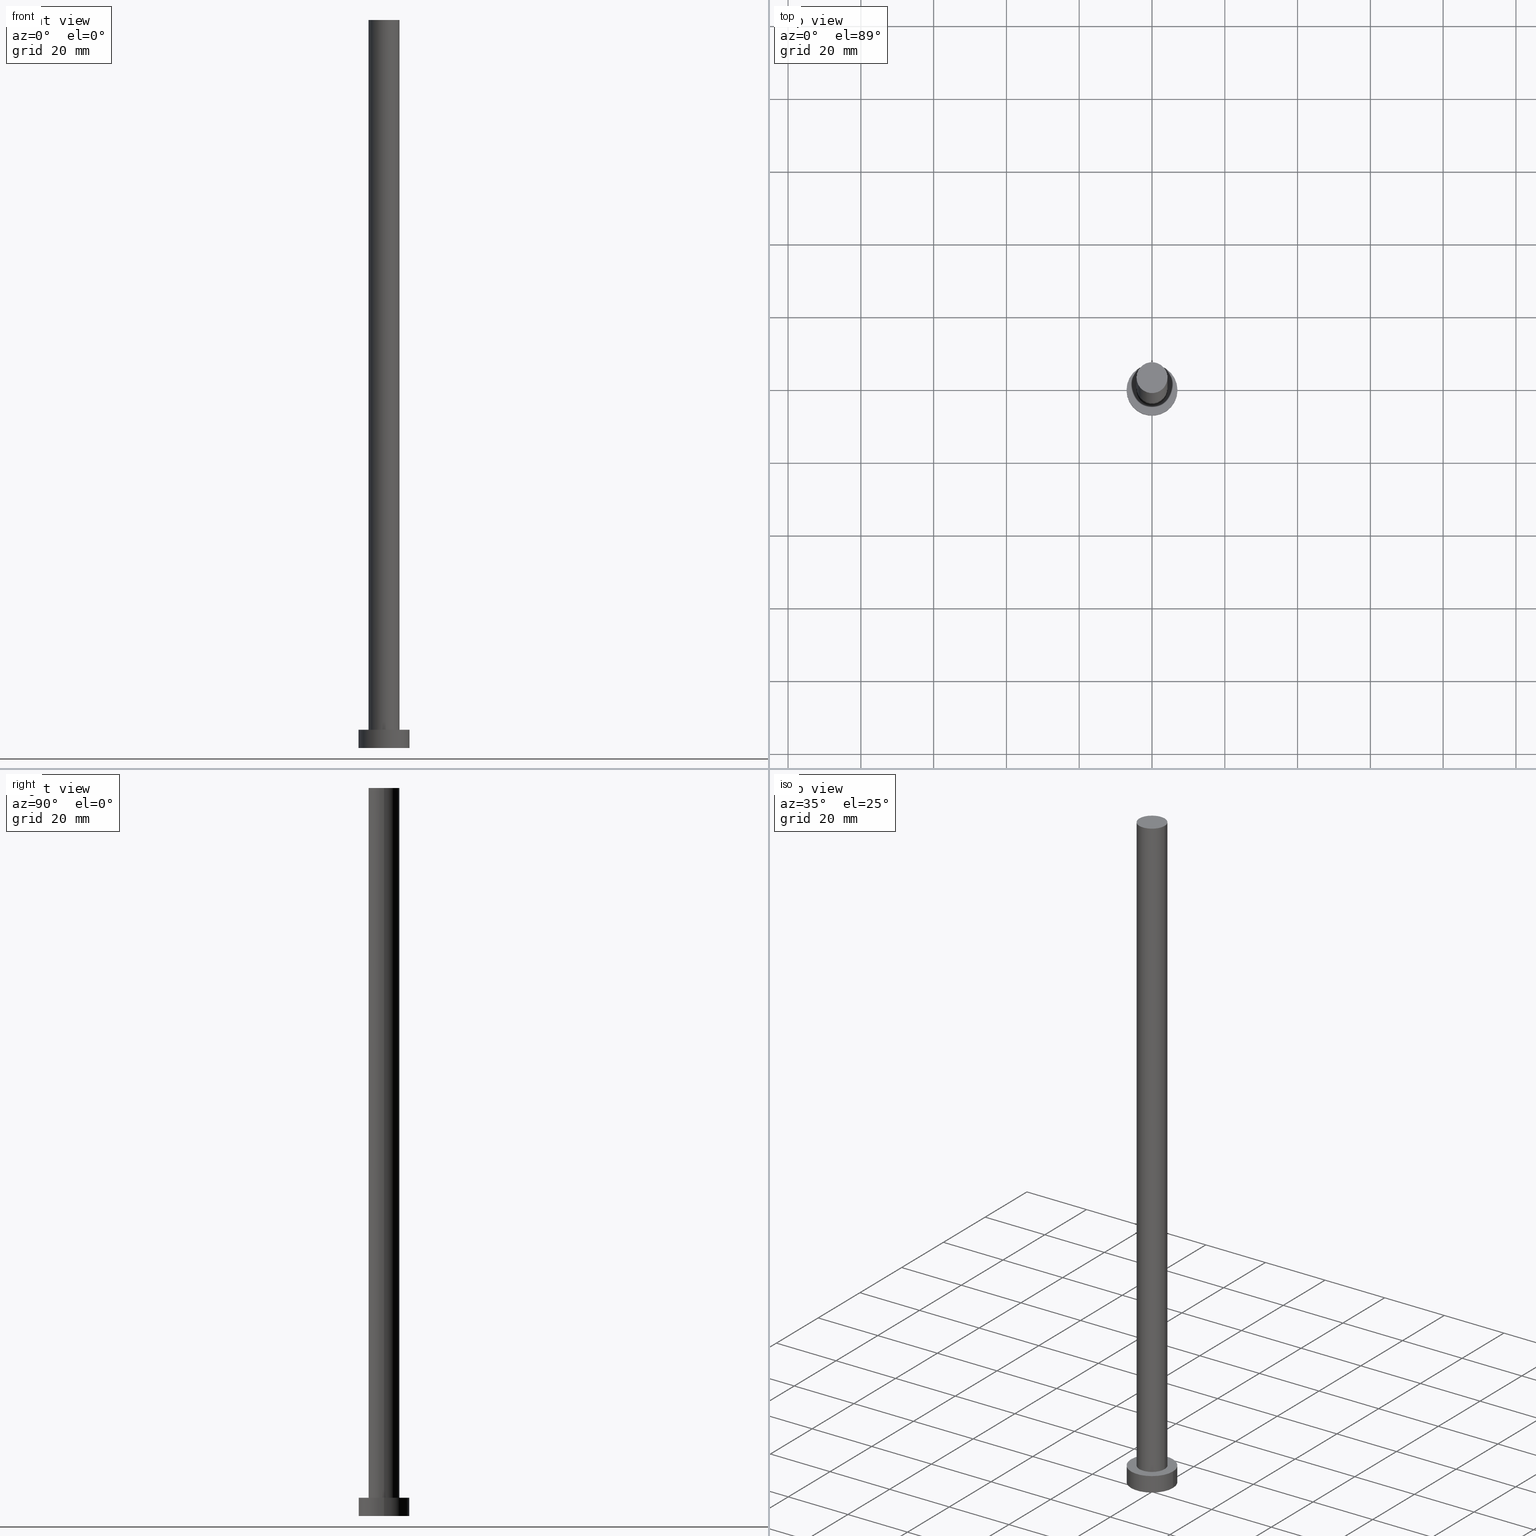
[diagram: canonical four-view strip — front | top / right | iso, engineering-drawing reading convention]
A machine part, canonical four-view strip (front | top / right | iso — engineering-drawing reading convention). The complete STEP part file that produces these views, byte-faithful:
ISO-10303-21;
HEADER;
FILE_DESCRIPTION (( 'STEP AP203' ),
    '1' );
FILE_NAME ('07c0.STEP',
    '2026-02-06T12:39:04',
    ( '' ),
    ( '' ),
    'SwSTEP 2.0',
    'SolidWorks 2019',
    '' );
FILE_SCHEMA (( 'CONFIG_CONTROL_DESIGN' ));
ENDSEC;

DATA;
#1 = EDGE_CURVE ( 'NONE', #57, #161, #108, .T. ) ;
#2 = EDGE_LOOP ( 'NONE', ( #194, #192, #41, #183 ) ) ;
#3 = AXIS2_PLACEMENT_3D ( 'NONE', #180, #7, #12 ) ;
#4 = AXIS2_PLACEMENT_3D ( 'NONE', #171, #148, #242 ) ;
#5 = AXIS2_PLACEMENT_3D ( 'NONE', #223, #115, #142 ) ;
#6 = CC_DESIGN_SECURITY_CLASSIFICATION ( #83, ( #147 ) ) ;
#7 = DIRECTION ( 'NONE',  ( 0.000000000000000000, 0.000000000000000000, 1.000000000000000000 ) ) ;
#8 = COORDINATED_UNIVERSAL_TIME_OFFSET ( 1, 0, .AHEAD. ) ;
#9 = ADVANCED_FACE ( 'NONE', ( #25, #244 ), #173, .T. ) ;
#10 = LINE ( 'NONE', #124, #23 ) ;
#11 = CARTESIAN_POINT ( 'NONE',  ( 0.000000000000000000, 0.000000000000000000, 200.0000000000000000 ) ) ;
#12 = DIRECTION ( 'NONE',  ( 1.000000000000000000, 0.000000000000000000, 0.000000000000000000 ) ) ;
#13 = COORDINATED_UNIVERSAL_TIME_OFFSET ( 1, 0, .AHEAD. ) ;
#14 = VERTEX_POINT ( 'NONE', #24 ) ;
#15 = APPROVAL_STATUS ( 'not_yet_approved' ) ;
#16 = VECTOR ( 'NONE', #64, 1000.000000000000000 ) ;
#17 = LINE ( 'NONE', #209, #16 ) ;
#18 = VERTEX_POINT ( 'NONE', #226 ) ;
#19 = AXIS2_PLACEMENT_3D ( 'NONE', #96, #175, #99 ) ;
#20 = EDGE_CURVE ( 'NONE', #104, #215, #22, .T. ) ;
#21 = EDGE_LOOP ( 'NONE', ( #56, #132 ) ) ;
#22 = CIRCLE ( 'NONE', #140, 7.000000000000000000 ) ;
#23 = VECTOR ( 'NONE', #250, 1000.000000000000000 ) ;
#24 = CARTESIAN_POINT ( 'NONE',  ( 4.250000000000000000, 5.204748896376250699E-16, 200.0000000000000000 ) ) ;
#25 = FACE_BOUND ( 'NONE', #21, .T. ) ;
#26 = DIRECTION ( 'NONE',  ( 1.000000000000000000, 0.000000000000000000, 0.000000000000000000 ) ) ;
#27 = CC_DESIGN_APPROVAL ( #168, ( #218 ) ) ;
#28 = FACE_OUTER_BOUND ( 'NONE', #2, .T. ) ;
#29 = PERSON_AND_ORGANIZATION ( #195, #158 ) ;
#30 = CARTESIAN_POINT ( 'NONE',  ( -7.000000000000000000, 0.000000000000000000, 5.000000000000000000 ) ) ;
#31 = EDGE_CURVE ( 'NONE', #239, #45, #62, .T. ) ;
#32 = SECURITY_CLASSIFICATION_LEVEL ( 'unclassified' ) ;
#33 = DIRECTION ( 'NONE',  ( -1.000000000000000000, 0.000000000000000000, 0.000000000000000000 ) ) ;
#34 = APPROVAL_ROLE ( '' ) ;
#35 = VECTOR ( 'NONE', #143, 1000.000000000000000 ) ;
#36 = CALENDAR_DATE ( 2026, 6, 2 ) ;
#37 = DIRECTION ( 'NONE',  ( 1.000000000000000000, 0.000000000000000000, -0.000000000000000000 ) ) ;
#38 = AXIS2_PLACEMENT_3D ( 'NONE', #197, #78, #227 ) ;
#39 = COORDINATED_UNIVERSAL_TIME_OFFSET ( 1, 0, .AHEAD. ) ;
#40 = ORIENTED_EDGE ( 'NONE', *, *, #20, .F. ) ;
#41 = ORIENTED_EDGE ( 'NONE', *, *, #46, .T. ) ;
#42 = CALENDAR_DATE ( 2026, 6, 2 ) ;
#43 = ORIENTED_EDGE ( 'NONE', *, *, #187, .T. ) ;
#44 = EDGE_CURVE ( 'NONE', #161, #57, #73, .T. ) ;
#45 = VERTEX_POINT ( 'NONE', #30 ) ;
#46 = EDGE_CURVE ( 'NONE', #18, #57, #98, .T. ) ;
#47 = APPROVAL_PERSON_ORGANIZATION ( #157, #89, #34 ) ;
#48 = APPROVAL ( #97, 'NEUR�EN�' ) ;
#49 = DIRECTION ( 'NONE',  ( 0.000000000000000000, 0.000000000000000000, 1.000000000000000000 ) ) ;
#50 = PERSON_AND_ORGANIZATION_ROLE ( 'classification_officer' ) ;
#51 = DIRECTION ( 'NONE',  ( 0.000000000000000000, 0.000000000000000000, 1.000000000000000000 ) ) ;
#52 = ADVANCED_BREP_SHAPE_REPRESENTATION ( '07c0', ( #117, #5 ), #91 ) ;
#53 = CARTESIAN_POINT ( 'NONE',  ( 0.000000000000000000, 0.000000000000000000, 0.000000000000000000 ) ) ;
#54 = PRODUCT_DEFINITION_SHAPE ( 'NONE', 'NONE',  #218 ) ;
#55 = DIRECTION ( 'NONE',  ( -1.000000000000000000, 0.000000000000000000, 0.000000000000000000 ) ) ;
#56 = ORIENTED_EDGE ( 'NONE', *, *, #1, .F. ) ;
#57 = VERTEX_POINT ( 'NONE', #66 ) ;
#58 = APPROVAL_ROLE ( '' ) ;
#59 = CC_DESIGN_PERSON_AND_ORGANIZATION_ASSIGNMENT ( #166, #145, ( #131 ) ) ;
#60 = ORIENTED_EDGE ( 'NONE', *, *, #46, .F. ) ;
#61 = AXIS2_PLACEMENT_3D ( 'NONE', #160, #138, #55 ) ;
#62 = CIRCLE ( 'NONE', #225, 7.000000000000000000 ) ;
#63 = CARTESIAN_POINT ( 'NONE',  ( 4.250000000000000000, 5.204748896376250699E-16, 200.0000000000000000 ) ) ;
#64 = DIRECTION ( 'NONE',  ( -0.000000000000000000, -0.000000000000000000, -1.000000000000000000 ) ) ;
#65 =( LENGTH_UNIT ( ) NAMED_UNIT ( * ) SI_UNIT ( .MILLI., .METRE. ) );
#66 = CARTESIAN_POINT ( 'NONE',  ( -4.250000000000000000, 0.000000000000000000, 5.000000000000000000 ) ) ;
#67 = ORIENTED_EDGE ( 'NONE', *, *, #210, .F. ) ;
#68 = EDGE_LOOP ( 'NONE', ( #211, #146, #251, #60 ) ) ;
#69 = APPLICATION_PROTOCOL_DEFINITION ( 'international standard', 'config_control_design', 1994, #186 ) ;
#70 = CARTESIAN_POINT ( 'NONE',  ( 0.000000000000000000, 0.000000000000000000, 5.000000000000000000 ) ) ;
#71 = CIRCLE ( 'NONE', #144, 7.000000000000000000 ) ;
#72 = ORIENTED_EDGE ( 'NONE', *, *, #241, .T. ) ;
#73 = CIRCLE ( 'NONE', #193, 4.250000000000000000 ) ;
#74 = CARTESIAN_POINT ( 'NONE',  ( 0.000000000000000000, 0.000000000000000000, 5.000000000000000000 ) ) ;
#75 = UNCERTAINTY_MEASURE_WITH_UNIT (LENGTH_MEASURE( 1.000000000000000082E-05 ), #65, 'distance_accuracy_value', 'NONE');
#76 = AXIS2_PLACEMENT_3D ( 'NONE', #70, #238, #33 ) ;
#77 = AXIS2_PLACEMENT_3D ( 'NONE', #11, #159, #248 ) ;
#78 = DIRECTION ( 'NONE',  ( -0.000000000000000000, -0.000000000000000000, -1.000000000000000000 ) ) ;
#79 = SHAPE_DEFINITION_REPRESENTATION ( #54, #52 ) ;
#80 = CARTESIAN_POINT ( 'NONE',  ( 0.000000000000000000, 0.000000000000000000, 5.000000000000000000 ) ) ;
#81 = LINE ( 'NONE', #63, #134 ) ;
#82 = ADVANCED_FACE ( 'NONE', ( #253 ), #255, .F. ) ;
#83 = SECURITY_CLASSIFICATION ( '', '', #32 ) ;
#84 = EDGE_LOOP ( 'NONE', ( #254, #90 ) ) ;
#85 = DATE_AND_TIME ( #122, #220 ) ;
#86 = AXIS2_PLACEMENT_3D ( 'NONE', #53, #49, #120 ) ;
#87 = APPLICATION_PROTOCOL_DEFINITION ( 'international standard', 'config_control_design', 1994, #150 ) ;
#88 = FACE_OUTER_BOUND ( 'NONE', #217, .T. ) ;
#89 = APPROVAL ( #15, 'NEUR�EN�' ) ;
#90 = ORIENTED_EDGE ( 'NONE', *, *, #31, .T. ) ;
#91 =( GEOMETRIC_REPRESENTATION_CONTEXT ( 3 ) GLOBAL_UNCERTAINTY_ASSIGNED_CONTEXT ( ( #75 ) ) GLOBAL_UNIT_ASSIGNED_CONTEXT ( ( #65, #95, #204 ) ) REPRESENTATION_CONTEXT ( 'NONE', 'WORKASPACE' ) );
#92 = ADVANCED_FACE ( 'NONE', ( #184 ), #164, .T. ) ;
#93 = EDGE_CURVE ( 'NONE', #45, #104, #17, .T. ) ;
#94 = CARTESIAN_POINT ( 'NONE',  ( 0.000000000000000000, 0.000000000000000000, 5.000000000000000000 ) ) ;
#95 =( NAMED_UNIT ( * ) PLANE_ANGLE_UNIT ( ) SI_UNIT ( $, .RADIAN. ) );
#96 = CARTESIAN_POINT ( 'NONE',  ( 0.000000000000000000, 0.000000000000000000, 200.0000000000000000 ) ) ;
#97 = APPROVAL_STATUS ( 'not_yet_approved' ) ;
#98 = LINE ( 'NONE', #106, #35 ) ;
#99 = DIRECTION ( 'NONE',  ( 1.000000000000000000, 0.000000000000000000, 0.000000000000000000 ) ) ;
#100 = PERSON_AND_ORGANIZATION ( #195, #158 ) ;
#101 = FACE_OUTER_BOUND ( 'NONE', #141, .T. ) ;
#102 = DIRECTION ( 'NONE',  ( 0.000000000000000000, 0.000000000000000000, 1.000000000000000000 ) ) ;
#103 = CC_DESIGN_PERSON_AND_ORGANIZATION_ASSIGNMENT ( #29, #207, ( #147 ) ) ;
#104 = VERTEX_POINT ( 'NONE', #185 ) ;
#105 = COORDINATED_UNIVERSAL_TIME_OFFSET ( 1, 0, .AHEAD. ) ;
#106 = CARTESIAN_POINT ( 'NONE',  ( -4.250000000000000000, 0.000000000000000000, 200.0000000000000000 ) ) ;
#107 = CC_DESIGN_PERSON_AND_ORGANIZATION_ASSIGNMENT ( #139, #200, ( #147 ) ) ;
#108 = CIRCLE ( 'NONE', #4, 4.250000000000000000 ) ;
#109 = EDGE_LOOP ( 'NONE', ( #234, #67, #128, #188 ) ) ;
#110 = ADVANCED_FACE ( 'NONE', ( #88 ), #165, .T. ) ;
#111 = DATE_AND_TIME ( #42, #191 ) ;
#112 = CC_DESIGN_APPROVAL ( #89, ( #147 ) ) ;
#113 = ADVANCED_FACE ( 'NONE', ( #101 ), #179, .T. ) ;
#114 = DESIGN_CONTEXT ( 'detailed design', #186, 'design' ) ;
#115 = DIRECTION ( 'NONE',  ( 0.000000000000000000, 0.000000000000000000, 1.000000000000000000 ) ) ;
#116 = PERSON_AND_ORGANIZATION ( #195, #158 ) ;
#117 = MANIFOLD_SOLID_BREP ( 'P�idat vysunut�m3', #230 ) ;
#118 = CYLINDRICAL_SURFACE ( 'NONE', #61, 7.000000000000000000 ) ;
#119 = PERSON_AND_ORGANIZATION ( #195, #158 ) ;
#120 = DIRECTION ( 'NONE',  ( 1.000000000000000000, 0.000000000000000000, 0.000000000000000000 ) ) ;
#121 = CC_DESIGN_PERSON_AND_ORGANIZATION_ASSIGNMENT ( #119, #249, ( #218 ) ) ;
#122 = CALENDAR_DATE ( 2026, 6, 2 ) ;
#123 = APPROVAL_PERSON_ORGANIZATION ( #116, #48, #176 ) ;
#124 = CARTESIAN_POINT ( 'NONE',  ( 7.000000000000000000, 8.572527594031473190E-16, 5.000000000000000000 ) ) ;
#125 = DATE_TIME_ROLE ( 'creation_date' ) ;
#126 = DIRECTION ( 'NONE',  ( 0.000000000000000000, 0.000000000000000000, 1.000000000000000000 ) ) ;
#127 = DIRECTION ( 'NONE',  ( -1.000000000000000000, 0.000000000000000000, 0.000000000000000000 ) ) ;
#128 = ORIENTED_EDGE ( 'NONE', *, *, #93, .T. ) ;
#129 = AXIS2_PLACEMENT_3D ( 'NONE', #74, #151, #155 ) ;
#130 = EDGE_CURVE ( 'NONE', #239, #215, #10, .T. ) ;
#131 = PRODUCT ( '07c0', '07c0', '', ( #190 ) ) ;
#132 = ORIENTED_EDGE ( 'NONE', *, *, #44, .F. ) ;
#133 = ORIENTED_EDGE ( 'NONE', *, *, #31, .F. ) ;
#134 = VECTOR ( 'NONE', #246, 1000.000000000000000 ) ;
#135 = DIRECTION ( 'NONE',  ( 0.000000000000000000, 0.000000000000000000, 1.000000000000000000 ) ) ;
#136 = APPROVAL_PERSON_ORGANIZATION ( #212, #168, #58 ) ;
#137 = EDGE_CURVE ( 'NONE', #14, #161, #81, .T. ) ;
#138 = DIRECTION ( 'NONE',  ( -0.000000000000000000, -0.000000000000000000, -1.000000000000000000 ) ) ;
#139 = PERSON_AND_ORGANIZATION ( #195, #158 ) ;
#140 = AXIS2_PLACEMENT_3D ( 'NONE', #221, #135, #245 ) ;
#141 = EDGE_LOOP ( 'NONE', ( #72, #43 ) ) ;
#142 = DIRECTION ( 'NONE',  ( 1.000000000000000000, 0.000000000000000000, 0.000000000000000000 ) ) ;
#143 = DIRECTION ( 'NONE',  ( -0.000000000000000000, -0.000000000000000000, -1.000000000000000000 ) ) ;
#144 = AXIS2_PLACEMENT_3D ( 'NONE', #80, #102, #153 ) ;
#145 = PERSON_AND_ORGANIZATION_ROLE ( 'design_owner' ) ;
#146 = ORIENTED_EDGE ( 'NONE', *, *, #137, .T. ) ;
#147 = PRODUCT_DEFINITION_FORMATION_WITH_SPECIFIED_SOURCE ( 'LIBOVOLN�', '', #131, .NOT_KNOWN. ) ;
#148 = DIRECTION ( 'NONE',  ( 0.000000000000000000, 0.000000000000000000, 1.000000000000000000 ) ) ;
#149 = CARTESIAN_POINT ( 'NONE',  ( 0.000000000000000000, 0.000000000000000000, 5.000000000000000000 ) ) ;
#150 = APPLICATION_CONTEXT ( 'configuration controlled 3d designs of mechanical parts and assemblies' ) ;
#151 = DIRECTION ( 'NONE',  ( 0.000000000000000000, 0.000000000000000000, 1.000000000000000000 ) ) ;
#152 = CC_DESIGN_DATE_AND_TIME_ASSIGNMENT ( #232, #125, ( #218 ) ) ;
#153 = DIRECTION ( 'NONE',  ( 1.000000000000000000, 0.000000000000000000, 0.000000000000000000 ) ) ;
#154 = COORDINATED_UNIVERSAL_TIME_OFFSET ( 1, 0, .AHEAD. ) ;
#155 = DIRECTION ( 'NONE',  ( 1.000000000000000000, 0.000000000000000000, -0.000000000000000000 ) ) ;
#156 = CARTESIAN_POINT ( 'NONE',  ( 4.250000000000000000, 5.204748896376250699E-16, 5.000000000000000000 ) ) ;
#157 = PERSON_AND_ORGANIZATION ( #195, #158 ) ;
#158 = ORGANIZATION ( 'NEUR�EN�', 'NEUR�EN�', '' ) ;
#159 = DIRECTION ( 'NONE',  ( 0.000000000000000000, 0.000000000000000000, 1.000000000000000000 ) ) ;
#160 = CARTESIAN_POINT ( 'NONE',  ( 0.000000000000000000, 0.000000000000000000, 5.000000000000000000 ) ) ;
#161 = VERTEX_POINT ( 'NONE', #156 ) ;
#162 = APPROVAL_DATE_TIME ( #111, #168 ) ;
#163 = AXIS2_PLACEMENT_3D ( 'NONE', #233, #126, #37 ) ;
#164 = CYLINDRICAL_SURFACE ( 'NONE', #196, 4.250000000000000000 ) ;
#165 = CYLINDRICAL_SURFACE ( 'NONE', #76, 7.000000000000000000 ) ;
#166 = PERSON_AND_ORGANIZATION ( #195, #158 ) ;
#167 = ORIENTED_EDGE ( 'NONE', *, *, #130, .T. ) ;
#168 = APPROVAL ( #216, 'NEUR�EN�' ) ;
#169 = ORIENTED_EDGE ( 'NONE', *, *, #93, .F. ) ;
#170 = LOCAL_TIME ( 13, 39, 4.000000000000000000, #154 ) ;
#171 = CARTESIAN_POINT ( 'NONE',  ( 0.000000000000000000, 0.000000000000000000, 5.000000000000000000 ) ) ;
#172 = CC_DESIGN_APPROVAL ( #48, ( #83 ) ) ;
#173 = PLANE ( 'NONE',  #129 ) ;
#174 = DIRECTION ( 'NONE',  ( 1.000000000000000000, 0.000000000000000000, 0.000000000000000000 ) ) ;
#175 = DIRECTION ( 'NONE',  ( 0.000000000000000000, 0.000000000000000000, 1.000000000000000000 ) ) ;
#176 = APPROVAL_ROLE ( '' ) ;
#177 = APPROVAL_DATE_TIME ( #228, #48 ) ;
#178 = CYLINDRICAL_SURFACE ( 'NONE', #38, 4.250000000000000000 ) ;
#179 = PLANE ( 'NONE',  #77 ) ;
#180 = CARTESIAN_POINT ( 'NONE',  ( 0.000000000000000000, 0.000000000000000000, 200.0000000000000000 ) ) ;
#181 = DATE_AND_TIME ( #252, #231 ) ;
#182 = EDGE_LOOP ( 'NONE', ( #40, #237 ) ) ;
#183 = ORIENTED_EDGE ( 'NONE', *, *, #1, .T. ) ;
#184 = FACE_OUTER_BOUND ( 'NONE', #68, .T. ) ;
#185 = CARTESIAN_POINT ( 'NONE',  ( -7.000000000000000000, 0.000000000000000000, 0.000000000000000000 ) ) ;
#186 = APPLICATION_CONTEXT ( 'configuration controlled 3d designs of mechanical parts and assemblies' ) ;
#187 = EDGE_CURVE ( 'NONE', #14, #18, #213, .T. ) ;
#188 = ORIENTED_EDGE ( 'NONE', *, *, #20, .T. ) ;
#189 = CC_DESIGN_PERSON_AND_ORGANIZATION_ASSIGNMENT ( #100, #50, ( #83 ) ) ;
#190 = MECHANICAL_CONTEXT ( 'NONE', #150, 'mechanical' ) ;
#191 = LOCAL_TIME ( 13, 39, 4.000000000000000000, #39 ) ;
#192 = ORIENTED_EDGE ( 'NONE', *, *, #241, .F. ) ;
#193 = AXIS2_PLACEMENT_3D ( 'NONE', #94, #199, #174 ) ;
#194 = ORIENTED_EDGE ( 'NONE', *, *, #137, .F. ) ;
#195 = PERSON ( 'NEUR�EN�', 'NEUR�EN�', 'NEUR�EN�', ('NEUR�EN�'), ('NEUR�EN�'), ('NEUR�EN�') ) ;
#196 = AXIS2_PLACEMENT_3D ( 'NONE', #201, #235, #127 ) ;
#197 = CARTESIAN_POINT ( 'NONE',  ( 0.000000000000000000, 0.000000000000000000, 200.0000000000000000 ) ) ;
#198 = LOCAL_TIME ( 13, 39, 4.000000000000000000, #8 ) ;
#199 = DIRECTION ( 'NONE',  ( 0.000000000000000000, 0.000000000000000000, 1.000000000000000000 ) ) ;
#200 = PERSON_AND_ORGANIZATION_ROLE ( 'design_supplier' ) ;
#201 = CARTESIAN_POINT ( 'NONE',  ( 0.000000000000000000, 0.000000000000000000, 200.0000000000000000 ) ) ;
#202 = CARTESIAN_POINT ( 'NONE',  ( 7.000000000000000000, 8.572527594031473190E-16, 5.000000000000000000 ) ) ;
#203 = CALENDAR_DATE ( 2026, 6, 2 ) ;
#204 =( NAMED_UNIT ( * ) SI_UNIT ( $, .STERADIAN. ) SOLID_ANGLE_UNIT ( ) );
#205 = DATE_TIME_ROLE ( 'classification_date' ) ;
#206 = CARTESIAN_POINT ( 'NONE',  ( 7.000000000000000000, 8.572527594031473190E-16, 0.000000000000000000 ) ) ;
#207 = PERSON_AND_ORGANIZATION_ROLE ( 'creator' ) ;
#208 = ADVANCED_FACE ( 'NONE', ( #229 ), #118, .T. ) ;
#209 = CARTESIAN_POINT ( 'NONE',  ( -7.000000000000000000, 0.000000000000000000, 5.000000000000000000 ) ) ;
#210 = EDGE_CURVE ( 'NONE', #45, #239, #71, .T. ) ;
#211 = ORIENTED_EDGE ( 'NONE', *, *, #187, .F. ) ;
#212 = PERSON_AND_ORGANIZATION ( #195, #158 ) ;
#213 = CIRCLE ( 'NONE', #19, 4.250000000000000000 ) ;
#214 = PRODUCT_RELATED_PRODUCT_CATEGORY ( 'detail', '', ( #131 ) ) ;
#215 = VERTEX_POINT ( 'NONE', #206 ) ;
#216 = APPROVAL_STATUS ( 'not_yet_approved' ) ;
#217 = EDGE_LOOP ( 'NONE', ( #133, #167, #240, #169 ) ) ;
#218 = PRODUCT_DEFINITION ( 'NEZN�M�', '', #147, #114 ) ;
#219 = CC_DESIGN_DATE_AND_TIME_ASSIGNMENT ( #85, #205, ( #83 ) ) ;
#220 = LOCAL_TIME ( 13, 39, 4.000000000000000000, #105 ) ;
#221 = CARTESIAN_POINT ( 'NONE',  ( 0.000000000000000000, 0.000000000000000000, 0.000000000000000000 ) ) ;
#222 = ADVANCED_FACE ( 'NONE', ( #28 ), #178, .T. ) ;
#223 = CARTESIAN_POINT ( 'NONE',  ( 0.000000000000000000, 0.000000000000000000, 0.000000000000000000 ) ) ;
#224 = APPROVAL_DATE_TIME ( #181, #89 ) ;
#225 = AXIS2_PLACEMENT_3D ( 'NONE', #149, #51, #26 ) ;
#226 = CARTESIAN_POINT ( 'NONE',  ( -4.250000000000000000, 0.000000000000000000, 200.0000000000000000 ) ) ;
#227 = DIRECTION ( 'NONE',  ( -1.000000000000000000, 0.000000000000000000, 0.000000000000000000 ) ) ;
#228 = DATE_AND_TIME ( #203, #170 ) ;
#229 = FACE_OUTER_BOUND ( 'NONE', #109, .T. ) ;
#230 = CLOSED_SHELL ( 'NONE', ( #92, #110, #208, #9, #82, #222, #113 ) ) ;
#231 = LOCAL_TIME ( 13, 39, 4.000000000000000000, #13 ) ;
#232 = DATE_AND_TIME ( #36, #198 ) ;
#233 = CARTESIAN_POINT ( 'NONE',  ( 0.000000000000000000, 0.000000000000000000, 0.000000000000000000 ) ) ;
#234 = ORIENTED_EDGE ( 'NONE', *, *, #130, .F. ) ;
#235 = DIRECTION ( 'NONE',  ( -0.000000000000000000, -0.000000000000000000, -1.000000000000000000 ) ) ;
#236 = EDGE_CURVE ( 'NONE', #215, #104, #243, .T. ) ;
#237 = ORIENTED_EDGE ( 'NONE', *, *, #236, .F. ) ;
#238 = DIRECTION ( 'NONE',  ( -0.000000000000000000, -0.000000000000000000, -1.000000000000000000 ) ) ;
#239 = VERTEX_POINT ( 'NONE', #202 ) ;
#240 = ORIENTED_EDGE ( 'NONE', *, *, #236, .T. ) ;
#241 = EDGE_CURVE ( 'NONE', #18, #14, #247, .T. ) ;
#242 = DIRECTION ( 'NONE',  ( 1.000000000000000000, 0.000000000000000000, 0.000000000000000000 ) ) ;
#243 = CIRCLE ( 'NONE', #86, 7.000000000000000000 ) ;
#244 = FACE_OUTER_BOUND ( 'NONE', #84, .T. ) ;
#245 = DIRECTION ( 'NONE',  ( 1.000000000000000000, 0.000000000000000000, 0.000000000000000000 ) ) ;
#246 = DIRECTION ( 'NONE',  ( -0.000000000000000000, -0.000000000000000000, -1.000000000000000000 ) ) ;
#247 = CIRCLE ( 'NONE', #3, 4.250000000000000000 ) ;
#248 = DIRECTION ( 'NONE',  ( 1.000000000000000000, 0.000000000000000000, -0.000000000000000000 ) ) ;
#249 = PERSON_AND_ORGANIZATION_ROLE ( 'creator' ) ;
#250 = DIRECTION ( 'NONE',  ( -0.000000000000000000, -0.000000000000000000, -1.000000000000000000 ) ) ;
#251 = ORIENTED_EDGE ( 'NONE', *, *, #44, .T. ) ;
#252 = CALENDAR_DATE ( 2026, 6, 2 ) ;
#253 = FACE_OUTER_BOUND ( 'NONE', #182, .T. ) ;
#254 = ORIENTED_EDGE ( 'NONE', *, *, #210, .T. ) ;
#255 = PLANE ( 'NONE',  #163 ) ;
ENDSEC;
END-ISO-10303-21;
